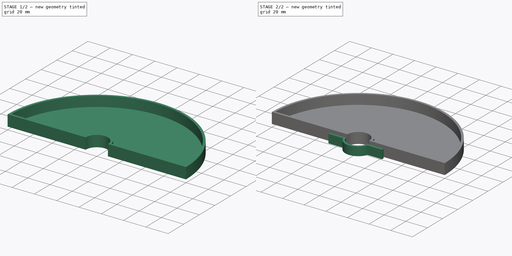
[diagram: build sequence overview — one tinted view per stage of 2, left to right]
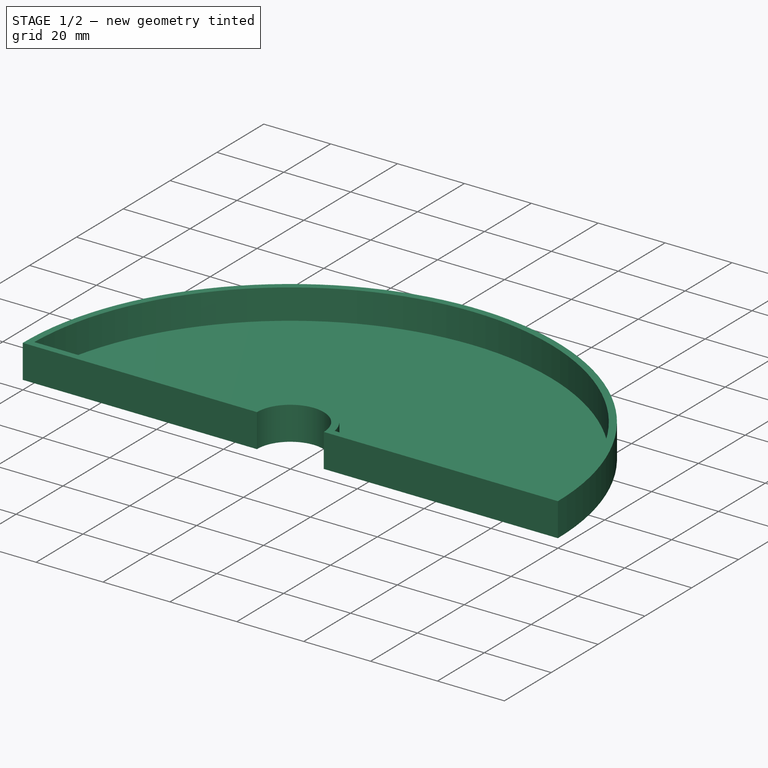
[diagram: stage 1 of 2 — iso view after this stage's code; geometry added in this stage tinted green]
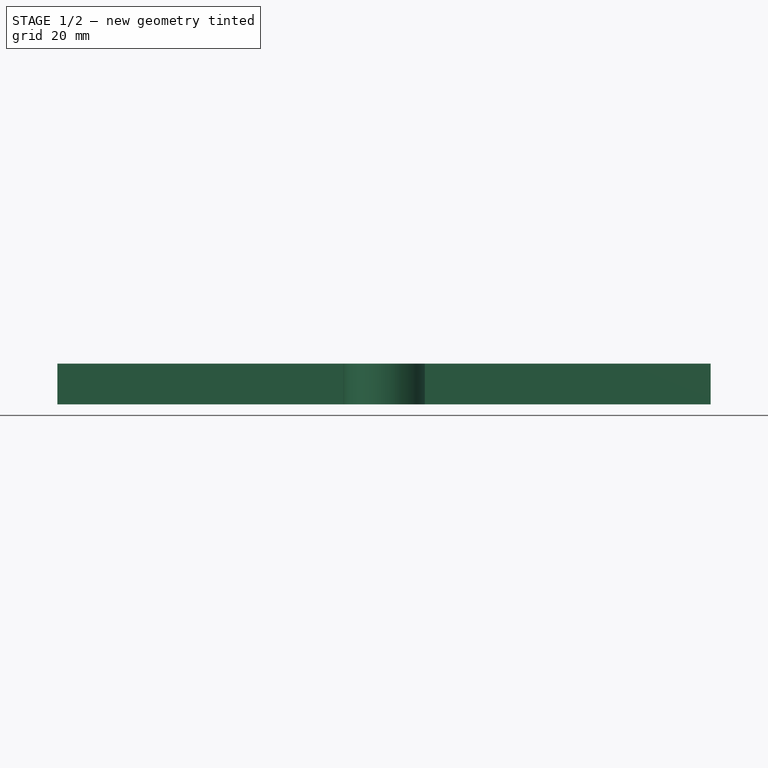
[diagram: stage 1 of 2 — front view after this stage's code; geometry added in this stage tinted green]
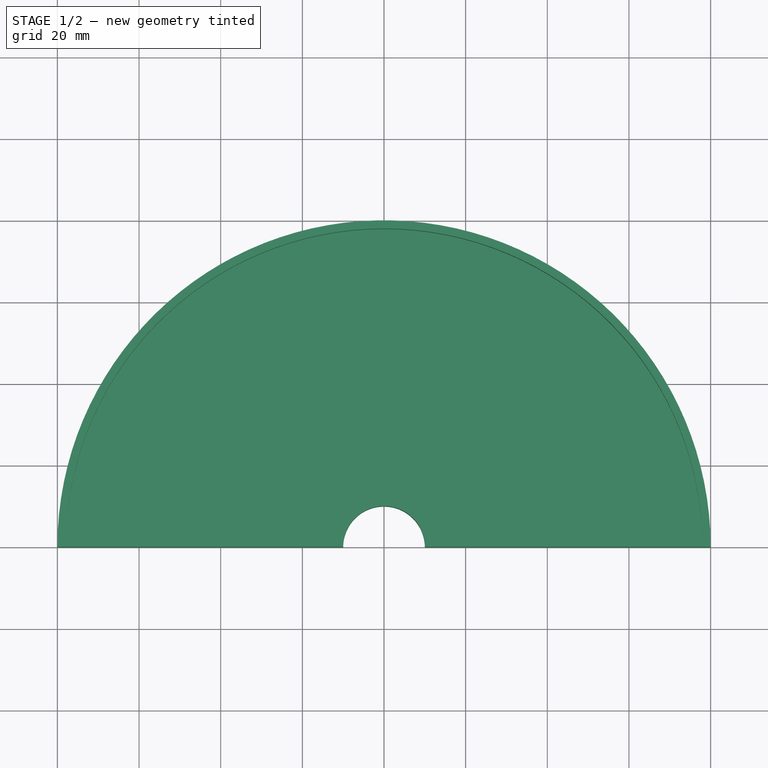
[diagram: stage 1 of 2 — top view after this stage's code; geometry added in this stage tinted green]
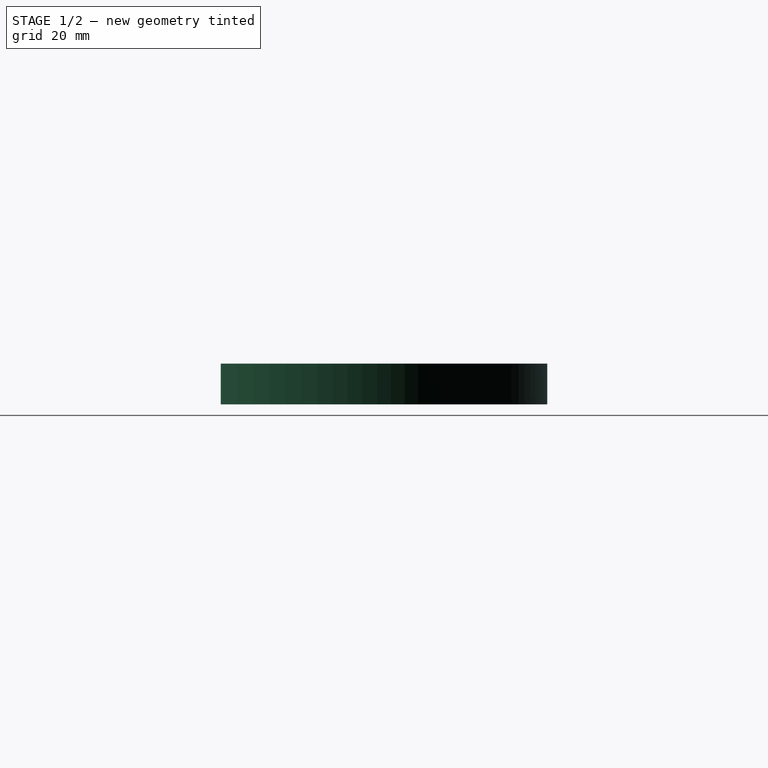
[diagram: stage 1 of 2 — right view after this stage's code; geometry added in this stage tinted green]
FCSTD DOCUMENT  (FreeCAD 0.20R29177 +426 (Git))
Label: bird seed
License: All rights reserved
LicenseURL: http://en.wikipedia.org/wiki/All_rights_reserved
objects: Sketcher::SketchObject×3, PartDesign::Pad×3, PartDesign::Body×2
note: 11 computed .brp shape members not serialized (recipe doc carries the construction recipe); baked Part::Feature solids carry a one-line shape summary decoded from their .brp

FEATURE [PartDesign::Body] Body001  label="connector"
  Group = -> [Sketch003,Pad]
  Origin = -> Origin001
  Tip = -> Pad
FEATURE [Sketcher::SketchObject] Sketch
  FullyConstrained = true
  MapMode = 5
  Support = -> [XY_Plane002]
  sketch-geometry (8):
    g0: ArcOfCircle CenterX=0 CenterY=0 CenterZ=0 NormalX=0 NormalY=0 NormalZ=1 AngleXU=0 Radius=10 StartAngle=0 EndAngle=3.14159
    g1: ArcOfCircle CenterX=0 CenterY=0 CenterZ=0 NormalX=0 NormalY=0 NormalZ=1 AngleXU=0 Radius=12 StartAngle=0.167448 EndAngle=2.97414
    g2: ArcOfCircle CenterX=0 CenterY=0 CenterZ=0 NormalX=0 NormalY=0 NormalZ=1 AngleXU=0 Radius=80 StartAngle=0 EndAngle=3.14159
    g3: ArcOfCircle CenterX=0 CenterY=0 CenterZ=0 NormalX=0 NormalY=0 NormalZ=1 AngleXU=0 Radius=78 StartAngle=0.0256438 EndAngle=3.11595
    g4: LineSegment StartX=-77.9744 StartY=2 StartZ=0 EndX=-11.8322 EndY=2 EndZ=0
    g5: LineSegment StartX=-80 StartY=9.8e-15 StartZ=0 EndX=-10 EndY=1.2e-15 EndZ=0
    g6: LineSegment StartX=10 StartY=0 StartZ=0 EndX=80 EndY=0 EndZ=0
    g7: LineSegment StartX=11.8322 StartY=2 StartZ=0 EndX=77.9744 EndY=2 EndZ=0
  constraints (24):
    c: Coincident(g0,g-1)
    c: PointOnObject(g0,g-1)
    c: PointOnObject(g0,g-1)
    c: Coincident(g1,g0)
    c: Coincident(g2,g0)
    c: PointOnObject(g2,g-1)
    c: PointOnObject(g2,g-1)
    c: Coincident(g3,g0)
    c: Horizontal(g4)
    c: DistanceY(g-1,g7) = 2
    c: Coincident(g5,g2)
    c: Coincident(g5,g0)
    c: Coincident(g6,g0)
    c: Coincident(g6,g2)
    c: Coincident(g3,g7)
    c: Coincident(g7,g1)
    c: Coincident(g1,g4)
    c: Coincident(g3,g4)
    c: Radius(g0) = 10
    c: Radius(g1) = 12
    c: Radius(g2) = 80
    c: Radius(g3) = 78
    c: DistanceY(g0,g1) = 2
    c: DistanceY(g0,g1) = 2
FEATURE [PartDesign::Pad] Pad001
  Direction = (0,0,1)
  Length = 10
  Length2 = 10
  Profile = -> Sketch
  ReferenceAxis = -> Sketch [N_Axis]
  Type = 0
FEATURE [Sketcher::SketchObject] Sketch004
  FullyConstrained = true
  MapMode = 5
  Support = -> [XY_Plane002]
  sketch-geometry (4):
    g0: ArcOfCircle CenterX=0 CenterY=0 CenterZ=0 NormalX=0 NormalY=0 NormalZ=1 AngleXU=0 Radius=80 StartAngle=0 EndAngle=3.14159
    g1: ArcOfCircle CenterX=0 CenterY=0 CenterZ=0 NormalX=0 NormalY=0 NormalZ=1 AngleXU=0 Radius=10 StartAngle=0 EndAngle=3.14159
    g2: LineSegment StartX=10 StartY=0 StartZ=0 EndX=80 EndY=0 EndZ=0
    g3: LineSegment StartX=-10 StartY=1.2e-15 StartZ=0 EndX=-80 EndY=9.8e-15 EndZ=0
  constraints (12):
    c: Coincident(g0,g-1)
    c: PointOnObject(g0,g-1)
    c: PointOnObject(g0,g-1)
    c: Radius(g0) = 80
    c: Coincident(g1,g0)
    c: PointOnObject(g1,g-1)
    c: PointOnObject(g1,g-1)
    c: Radius(g1) = 10
    c: Coincident(g2,g1)
    c: Coincident(g2,g0)
    c: Coincident(g3,g1)
    c: Coincident(g3,g0)
FEATURE [PartDesign::Pad] Pad002
  BaseFeature = -> Pad001
  Direction = (0,0,1)
  Length = 1
  Length2 = 10
  Profile = -> Sketch004
  ReferenceAxis = -> Sketch004 [N_Axis]
  Type = 0
FEATURE [PartDesign::Body] Body002  label="plate"
  Group = -> [Sketch,Pad001,Sketch004,Pad002]
  Origin = -> Origin002
  Tip = -> Pad002
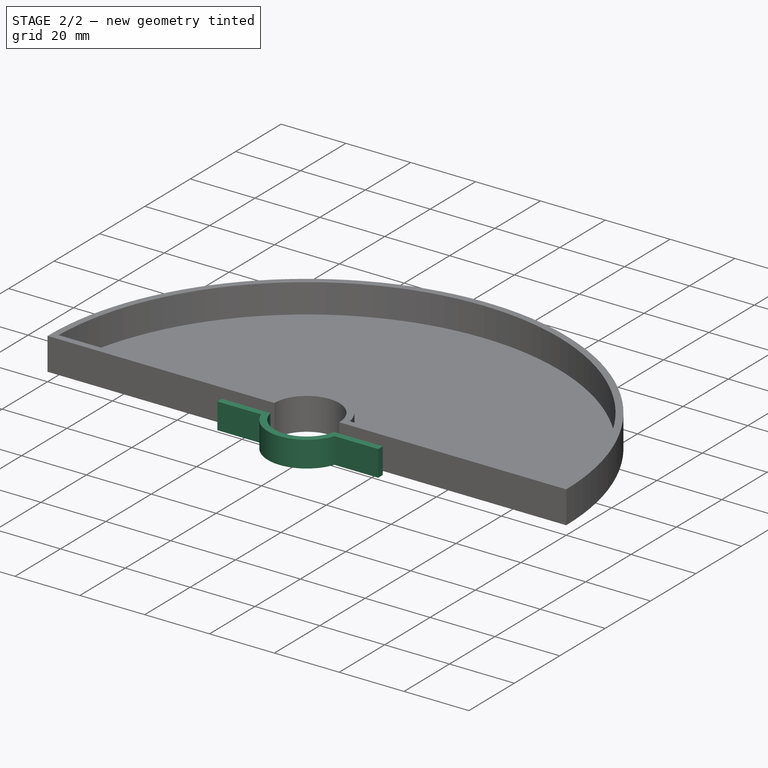
[diagram: stage 2 of 2 — iso view after this stage's code; geometry added in this stage tinted green]
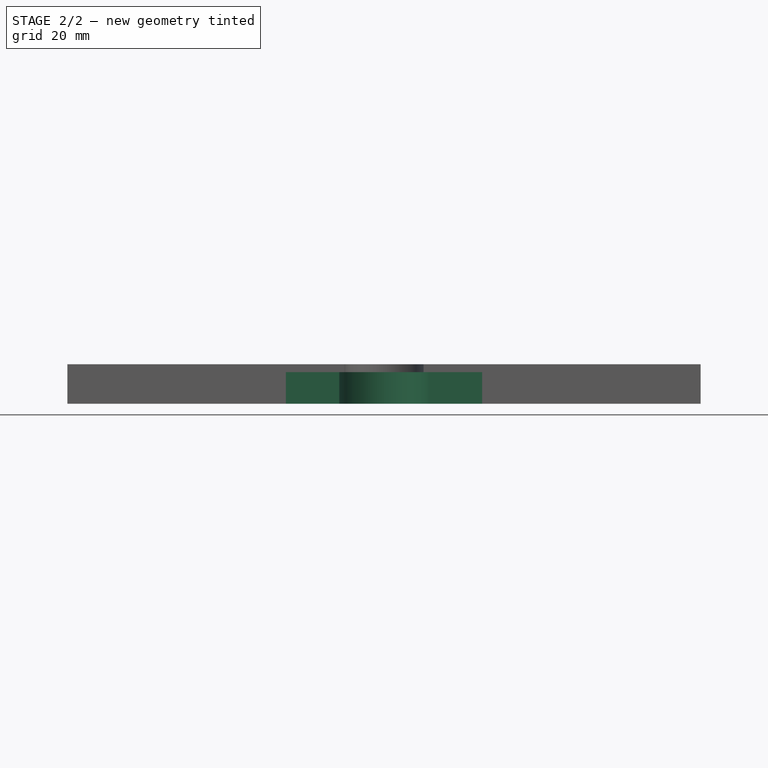
[diagram: stage 2 of 2 — front view after this stage's code; geometry added in this stage tinted green]
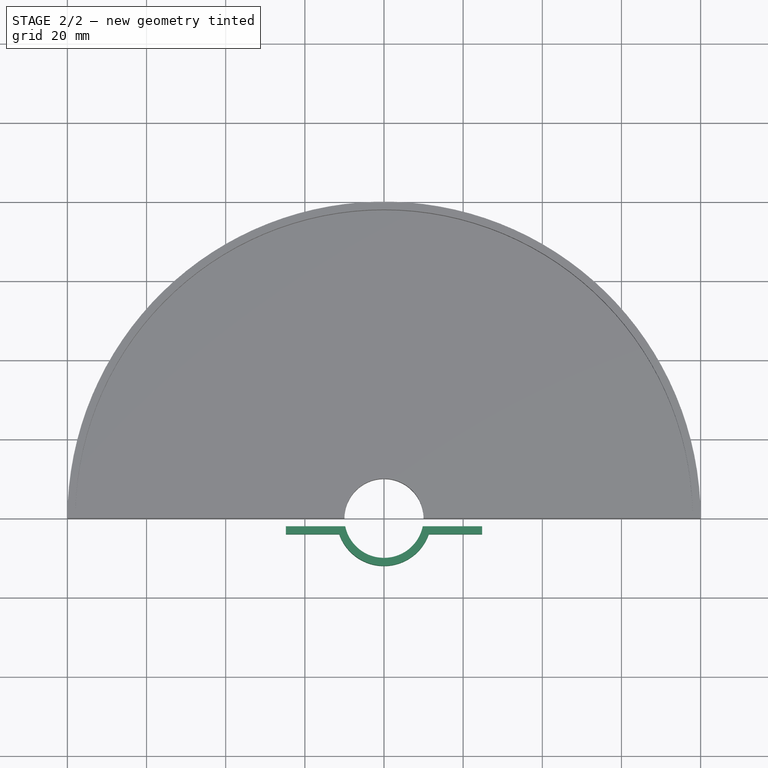
[diagram: stage 2 of 2 — top view after this stage's code; geometry added in this stage tinted green]
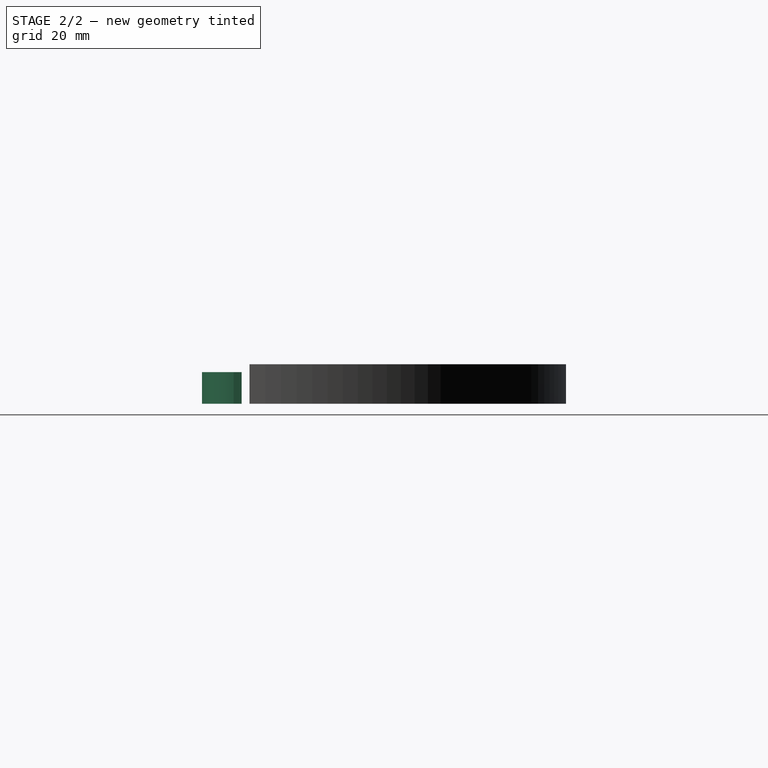
[diagram: stage 2 of 2 — right view after this stage's code; geometry added in this stage tinted green]
FEATURE [Sketcher::SketchObject] Sketch003
  FullyConstrained = true
  MapMode = 5
  Support = -> [XY_Plane001]
  sketch-geometry (8):
    g0: ArcOfCircle CenterX=0 CenterY=0 CenterZ=0 NormalX=0 NormalY=0 NormalZ=1 AngleXU=0 Radius=10 StartAngle=3.34295 EndAngle=6.08183
    g1: ArcOfCircle CenterX=0 CenterY=0 CenterZ=0 NormalX=0 NormalY=0 NormalZ=1 AngleXU=0 Radius=12 StartAngle=3.48143 EndAngle=5.94335
    g2: LineSegment StartX=-24.798 StartY=-4 StartZ=0 EndX=-11.3137 EndY=-4 EndZ=0
    g3: LineSegment StartX=-9.79796 StartY=-2 StartZ=0 EndX=-24.798 EndY=-2 EndZ=0
    g4: LineSegment StartX=-24.798 StartY=-2 StartZ=0 EndX=-24.798 EndY=-4 EndZ=0
    g5: LineSegment StartX=24.798 StartY=-4 StartZ=0 EndX=11.3137 EndY=-4 EndZ=0
    g6: LineSegment StartX=9.79796 StartY=-2 StartZ=0 EndX=24.798 EndY=-2 EndZ=0
    g7: LineSegment StartX=24.798 StartY=-2 StartZ=0 EndX=24.798 EndY=-4 EndZ=0
  constraints (24):
    c: Coincident(g0,g-1)
    c: Coincident(g1,g0)
    c: Coincident(g3,g4)
    c: Coincident(g4,g2)
    c: Horizontal(g2)
    c: Horizontal(g3)
    c: Vertical(g4)
    c: Coincident(g6,g7)
    c: Coincident(g7,g5)
    c: Horizontal(g5)
    c: Horizontal(g6)
    c: Vertical(g7)
    c: Equal(g4,g7)
    c: DistanceY(g4,g4) = 2
    c: Radius(g0) = 10
    c: Radius(g1) = 12
    c: Coincident(g6,g0)
    c: Equal(g3,g6)
    c: DistanceX(g6,g6) = 15
    c: Coincident(g2,g1)
    c: Coincident(g1,g5)
    c: DistanceY(g3,g0) = 2
    c: DistanceY(g0,g0) = 2
    c: Coincident(g3,g0)
FEATURE [PartDesign::Pad] Pad
  Direction = (0,0,1)
  Length = 8
  Length2 = 10
  Profile = -> Sketch003
  ReferenceAxis = -> Sketch003 [N_Axis]
  Type = 0
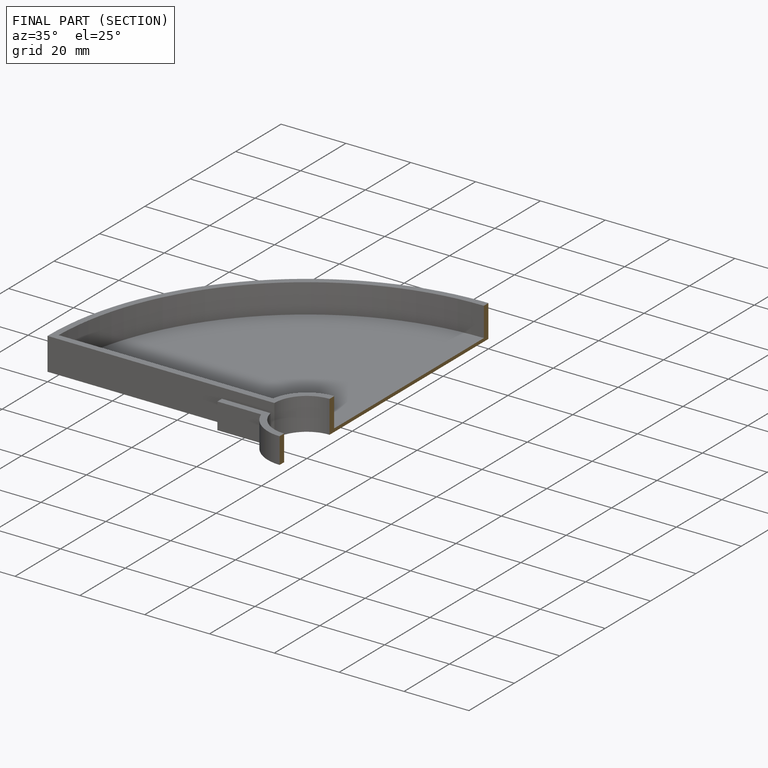
[diagram: finished part — half-section view (interior)]
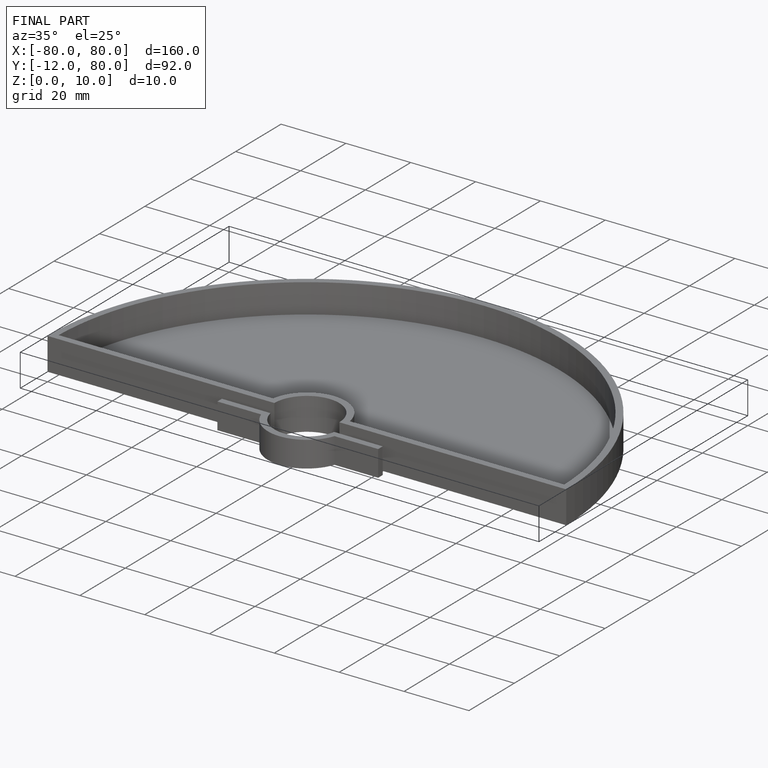
[diagram: finished part — iso view with bounding-box wireframe]
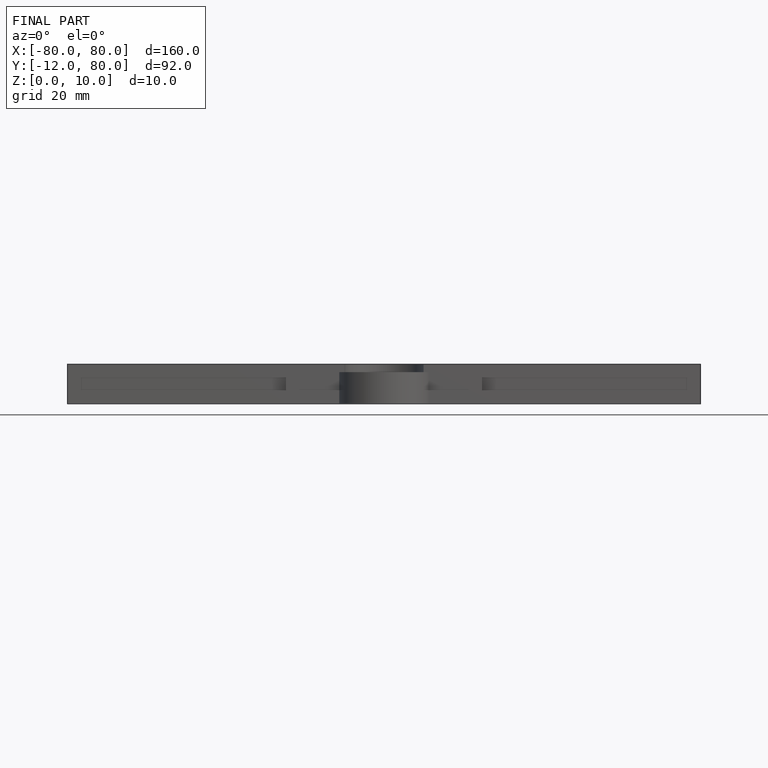
[diagram: finished part — front view with bounding-box wireframe]
